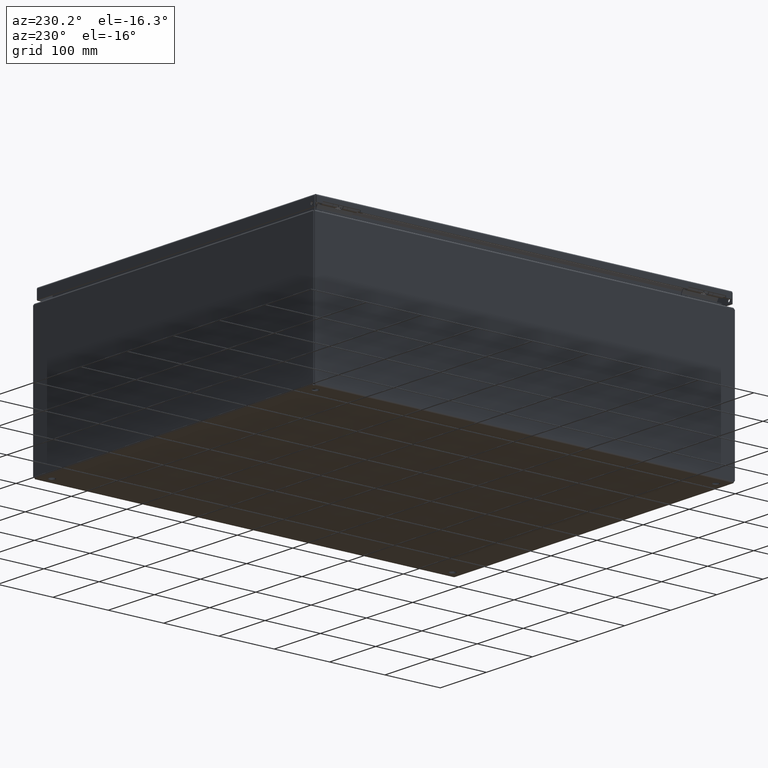
[diagram: clean part render]
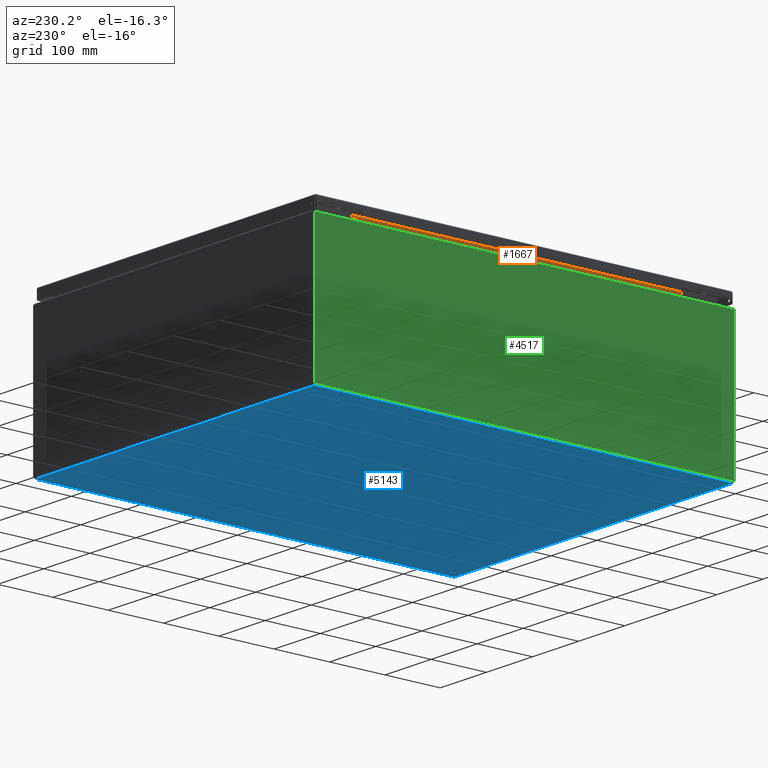
[diagram: same view with three faces highlighted in distinct colors, each labeled with its STEP entity id]
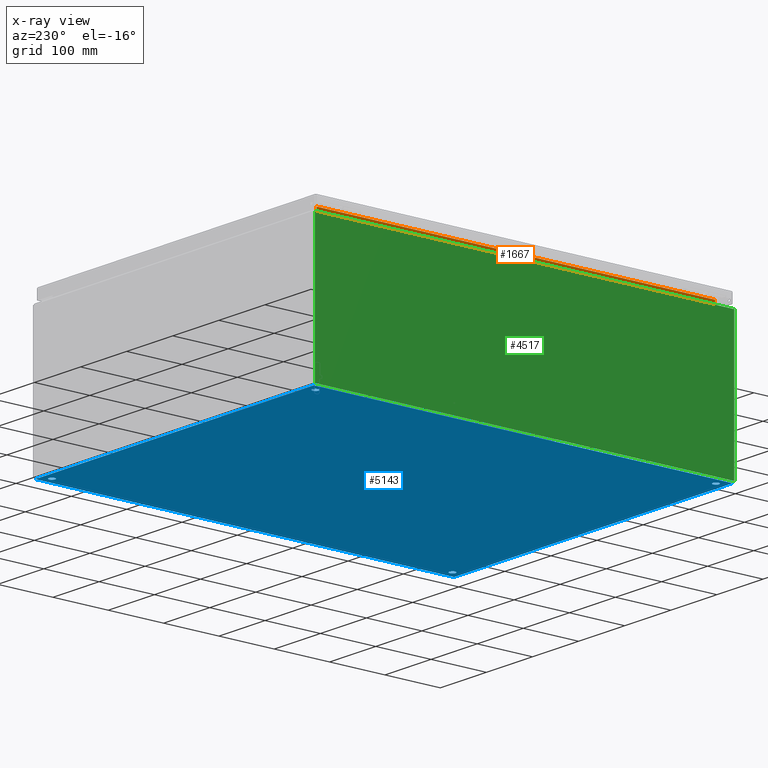
[diagram: x-ray of the same camera — body ghosted, the three highlighted faces saturated]
A machine part, auxiliary view with three faces highlighted in distinct colors.
The next image is the same camera in x-ray (body ghosted, the three faces saturated) — at least one of them is partly hidden behind the body in this view.
Their STEP definitions:

[orange] entity #1667 — the highlighted planar face has unit normal (-1, 0, 0).
#1020=CARTESIAN_POINT('',(0.738499999999976,29.176451456543468,10.455404022560259));
#1021=VERTEX_POINT('',#1020);
#1070=CARTESIAN_POINT('',(0.738499999999997,0.823548543456038,10.455404022560275));
#1071=VERTEX_POINT('',#1070);
#1149=CARTESIAN_POINT('',(0.738499999999995,0.823548543456038,10.455404022560275));
#1150=DIRECTION('',(0.0,1.0,0.0));
#1151=VECTOR('',#1150,28.352902913087430);
#1152=LINE('',#1149,#1151);
#1153=EDGE_CURVE('',#1071,#1021,#1152,.T.);
#1626=CARTESIAN_POINT('',(0.738499999999995,0.823548543456041,10.031250000000041));
#1627=VERTEX_POINT('',#1626);
#1628=CARTESIAN_POINT('',(0.738499999999997,0.823548543456042,10.031250000000041));
#1629=DIRECTION('',(0.0,0.0,1.0));
#1630=VECTOR('',#1629,0.424154022560234);
#1631=LINE('',#1628,#1630);
#1632=EDGE_CURVE('',#1627,#1071,#1631,.T.);
#1644=CARTESIAN_POINT('',(0.738499999999986,14.999999999999753,10.219960531768683));
#1645=DIRECTION('',(-1.0,0.0,0.0));
#1646=DIRECTION('',(0.0,0.0,1.0));
#1647=AXIS2_PLACEMENT_3D('',#1644,#1645,#1646);
#1648=PLANE('',#1647);
#1649=ORIENTED_EDGE('',*,*,#1153,.T.);
#1650=CARTESIAN_POINT('',(0.738499999999976,29.176451456543457,10.031250000000025));
#1651=VERTEX_POINT('',#1650);
#1652=CARTESIAN_POINT('',(0.738499999999976,29.176451456543468,10.031250000000025));
#1653=DIRECTION('',(0.0,0.0,1.0));
#1654=VECTOR('',#1653,0.424154022560232);
#1655=LINE('',#1652,#1654);
#1656=EDGE_CURVE('',#1651,#1021,#1655,.T.);
#1657=ORIENTED_EDGE('',*,*,#1656,.F.);
#1658=CARTESIAN_POINT('',(0.738499999999976,29.176451456543457,10.031250000000023));
#1659=DIRECTION('',(0.0,-1.0,0.0));
#1660=VECTOR('',#1659,28.352902913087419);
#1661=LINE('',#1658,#1660);
#1662=EDGE_CURVE('',#1651,#1627,#1661,.T.);
#1663=ORIENTED_EDGE('',*,*,#1662,.T.);
#1664=ORIENTED_EDGE('',*,*,#1632,.T.);
#1665=EDGE_LOOP('',(#1649,#1657,#1663,#1664));
#1666=FACE_OUTER_BOUND('',#1665,.T.);
#1667=ADVANCED_FACE('',(#1666),#1648,.T.);

[blue] entity #5143 — the highlighted planar face has unit normal (0, 0, 1).
#247=CARTESIAN_POINT('',(0.531249999999996,0.750000000000002,0.0));
#248=VERTEX_POINT('',#247);
#249=CARTESIAN_POINT('',(0.749999999999996,0.750000000000002,0.0));
#250=DIRECTION('',(0.0,0.0,1.0));
#251=DIRECTION('',(1.0,0.0,0.0));
#252=AXIS2_PLACEMENT_3D('',#249,#250,#251);
#253=CIRCLE('',#252,0.218750000000000);
#254=EDGE_CURVE('',#248,#248,#253,.T.);
#275=CARTESIAN_POINT('',(23.031249999999961,0.750000000000002,0.0));
#276=VERTEX_POINT('',#275);
#277=CARTESIAN_POINT('',(23.249999999999961,0.750000000000002,0.0));
#278=DIRECTION('',(0.0,0.0,1.0));
#279=DIRECTION('',(1.0,0.0,0.0));
#280=AXIS2_PLACEMENT_3D('',#277,#278,#279);
#281=CIRCLE('',#280,0.218750000000000);
#282=EDGE_CURVE('',#276,#276,#281,.T.);
#303=CARTESIAN_POINT('',(0.531249999999997,29.250000000000025,0.0));
#304=VERTEX_POINT('',#303);
#305=CARTESIAN_POINT('',(0.749999999999997,29.250000000000025,0.0));
#306=DIRECTION('',(0.0,0.0,1.0));
#307=DIRECTION('',(1.0,0.0,0.0));
#308=AXIS2_PLACEMENT_3D('',#305,#306,#307);
#309=CIRCLE('',#308,0.218750000000000);
#310=EDGE_CURVE('',#304,#304,#309,.T.);
#331=CARTESIAN_POINT('',(23.031249999999986,29.250000000000025,0.0));
#332=VERTEX_POINT('',#331);
#333=CARTESIAN_POINT('',(23.249999999999986,29.250000000000025,0.0));
#334=DIRECTION('',(0.0,0.0,1.0));
#335=DIRECTION('',(1.0,0.0,0.0));
#336=AXIS2_PLACEMENT_3D('',#333,#334,#335);
#337=CIRCLE('',#336,0.218750000000000);
#338=EDGE_CURVE('',#332,#332,#337,.T.);
#3921=CARTESIAN_POINT('',(23.894749999999995,29.886393473394303,0.0));
#3922=VERTEX_POINT('',#3921);
#4019=CARTESIAN_POINT('',(23.894750000000002,0.113606526605709,0.0));
#4020=VERTEX_POINT('',#4019);
#4063=CARTESIAN_POINT('',(23.894749999999995,29.886393473394300,0.0));
#4064=DIRECTION('',(0.0,-1.0,0.0));
#4065=VECTOR('',#4064,29.772786946788592);
#4066=LINE('',#4063,#4065);
#4067=EDGE_CURVE('',#3922,#4020,#4066,.T.);
#4238=CARTESIAN_POINT('',(0.113606526605702,29.894750000000002,5.594825E-015));
#4239=VERTEX_POINT('',#4238);
#4336=CARTESIAN_POINT('',(23.886393473394293,29.894750000000002,0.0));
#4337=VERTEX_POINT('',#4336);
#4380=CARTESIAN_POINT('',(0.113606526605702,29.894750000000002,0.0));
#4381=DIRECTION('',(1.0,0.0,0.0));
#4382=VECTOR('',#4381,23.772786946788592);
#4383=LINE('',#4380,#4382);
#4384=EDGE_CURVE('',#4239,#4337,#4383,.T.);
#4551=CARTESIAN_POINT('',(0.105250000000006,0.113606526605711,0.0));
#4552=VERTEX_POINT('',#4551);
#4649=CARTESIAN_POINT('',(0.105249999999997,29.886393473394296,0.0));
#4650=VERTEX_POINT('',#4649);
#4693=CARTESIAN_POINT('',(0.105250000000005,0.113606526605711,0.0));
#4694=DIRECTION('',(0.0,1.0,0.0));
#4695=VECTOR('',#4694,29.772786946788582);
#4696=LINE('',#4693,#4695);
#4697=EDGE_CURVE('',#4552,#4650,#4696,.T.);
#4864=CARTESIAN_POINT('',(23.886393473394293,0.105250000000001,0.0));
#4865=VERTEX_POINT('',#4864);
#4920=CARTESIAN_POINT('',(0.113606526605715,0.105250000000001,0.0));
#4921=VERTEX_POINT('',#4920);
#4935=CARTESIAN_POINT('',(23.886393473394293,0.105250000000001,0.0));
#4936=DIRECTION('',(-1.0,0.0,0.0));
#4937=VECTOR('',#4936,23.772786946788578);
#4938=LINE('',#4935,#4937);
#4939=EDGE_CURVE('',#4865,#4921,#4938,.T.);
#5030=CARTESIAN_POINT('',(0.061526884243670,0.061526884243670,0.0));
#5031=DIRECTION('',(0.0,0.0,1.0));
#5032=DIRECTION('',(1.0,0.0,0.0));
#5033=AXIS2_PLACEMENT_3D('',#5030,#5031,#5032);
#5034=CIRCLE('',#5033,0.068000000000000);
#5035=EDGE_CURVE('',#4921,#4552,#5034,.T.);
#5092=CARTESIAN_POINT('',(23.938473115756334,0.061526884243667,0.0));
#5093=DIRECTION('',(0.0,0.0,1.0));
#5094=DIRECTION('',(1.0,0.0,0.0));
#5095=AXIS2_PLACEMENT_3D('',#5092,#5093,#5094);
#5096=CIRCLE('',#5095,0.068000000000000);
#5097=EDGE_CURVE('',#4020,#4865,#5096,.T.);
#5104=CARTESIAN_POINT('',(11.999999999999996,15.000000000000007,0.0));
#5105=DIRECTION('',(0.0,0.0,1.0));
#5106=DIRECTION('',(1.0,0.0,0.0));
#5107=AXIS2_PLACEMENT_3D('',#5104,#5105,#5106);
#5108=PLANE('',#5107);
#5109=ORIENTED_EDGE('',*,*,#4939,.T.);
#5110=ORIENTED_EDGE('',*,*,#5035,.T.);
#5111=ORIENTED_EDGE('',*,*,#4697,.T.);
#5112=CARTESIAN_POINT('',(0.061526884243656,29.938473115756331,0.0));
#5113=DIRECTION('',(0.0,0.0,1.0));
#5114=DIRECTION('',(1.0,0.0,0.0));
#5115=AXIS2_PLACEMENT_3D('',#5112,#5113,#5114);
#5116=CIRCLE('',#5115,0.068000000000000);
#5117=EDGE_CURVE('',#4650,#4239,#5116,.T.);
#5118=ORIENTED_EDGE('',*,*,#5117,.T.);
#5119=ORIENTED_EDGE('',*,*,#4384,.T.);
#5120=CARTESIAN_POINT('',(23.938473115756331,29.938473115756342,0.0));
#5121=DIRECTION('',(0.0,0.0,1.0));
#5122=DIRECTION('',(1.0,0.0,0.0));
#5123=AXIS2_PLACEMENT_3D('',#5120,#5121,#5122);
#5124=CIRCLE('',#5123,0.068000000000000);
#5125=EDGE_CURVE('',#4337,#3922,#5124,.T.);
#5126=ORIENTED_EDGE('',*,*,#5125,.T.);
#5127=ORIENTED_EDGE('',*,*,#4067,.T.);
#5128=ORIENTED_EDGE('',*,*,#5097,.T.);
#5129=EDGE_LOOP('',(#5109,#5110,#5111,#5118,#5119,#5126,#5127,#5128));
#5130=FACE_OUTER_BOUND('',#5129,.T.);
#5131=ORIENTED_EDGE('',*,*,#254,.T.);
#5132=EDGE_LOOP('',(#5131));
#5133=FACE_BOUND('',#5132,.T.);
#5134=ORIENTED_EDGE('',*,*,#282,.T.);
#5135=EDGE_LOOP('',(#5134));
#5136=FACE_BOUND('',#5135,.T.);
#5137=ORIENTED_EDGE('',*,*,#310,.T.);
#5138=EDGE_LOOP('',(#5137));
#5139=FACE_BOUND('',#5138,.T.);
#5140=ORIENTED_EDGE('',*,*,#338,.T.);
#5141=EDGE_LOOP('',(#5140));
#5142=FACE_BOUND('',#5141,.T.);
#5143=ADVANCED_FACE('',(#5130,#5133,#5136,#5139,#5142),#5108,.F.);

[green] entity #4517 — the highlighted planar face has unit normal (1, 0, 0).
#3090=CARTESIAN_POINT('',(5.616679E-015,0.085048543456050,9.894749999999998));
#3091=VERTEX_POINT('',#3090);
#3120=CARTESIAN_POINT('',(-2.699066E-015,29.914951456543456,9.894750000000007));
#3121=VERTEX_POINT('',#3120);
#3135=CARTESIAN_POINT('',(5.511465E-015,0.085048543456050,9.894749999999998));
#3136=DIRECTION('',(0.0,1.0,0.0));
#3137=VECTOR('',#3136,29.829902913087405);
#3138=LINE('',#3135,#3137);
#3139=EDGE_CURVE('',#3091,#3121,#3138,.T.);
#3464=CARTESIAN_POINT('',(-3.649749E-015,29.919999999999995,9.894750000000007));
#3465=VERTEX_POINT('',#3464);
#3472=CARTESIAN_POINT('',(-3.621309E-015,29.914951456543456,9.894750000000007));
#3473=DIRECTION('',(0.0,1.0,0.0));
#3474=VECTOR('',#3473,0.005048543456539);
#3475=LINE('',#3472,#3474);
#3476=EDGE_CURVE('',#3121,#3465,#3475,.T.);
#3642=CARTESIAN_POINT('',(5.485551E-015,0.080000000000007,9.894749999999998));
#3643=VERTEX_POINT('',#3642);
#3644=CARTESIAN_POINT('',(5.513011E-015,0.080000000000006,9.894749999999998));
#3645=DIRECTION('',(0.0,1.0,0.0));
#3646=VECTOR('',#3645,0.005048543456044);
#3647=LINE('',#3644,#3646);
#3648=EDGE_CURVE('',#3643,#3091,#3647,.T.);
#3673=CARTESIAN_POINT('',(5.635656E-015,0.080000000000004,0.126969561406607));
#3674=VERTEX_POINT('',#3673);
#3675=CARTESIAN_POINT('',(6.095738E-015,0.080000000000001,9.894750000000000));
#3676=DIRECTION('',(0.0,0.0,-1.0));
#3677=VECTOR('',#3676,9.767780438593393);
#3678=LINE('',#3675,#3677);
#3679=EDGE_CURVE('',#3643,#3674,#3678,.T.);
#4405=CARTESIAN_POINT('',(-3.018703E-015,29.886393473394296,0.105250000000000));
#4406=VERTEX_POINT('',#4405);
#4413=CARTESIAN_POINT('',(-3.500209E-015,29.919999999999995,0.126969561406610));
#4414=VERTEX_POINT('',#4413);
#4415=CARTESIAN_POINT('',(-3.031980E-015,29.938473115756342,0.061526884243671));
#4416=DIRECTION('',(1.0,0.0,0.0));
#4417=DIRECTION('',(0.0,0.0,-1.0));
#4418=AXIS2_PLACEMENT_3D('',#4415,#4416,#4417);
#4419=CIRCLE('',#4418,0.068000000000000);
#4420=EDGE_CURVE('',#4414,#4406,#4419,.T.);
#4484=CARTESIAN_POINT('',(1.238679E-015,15.000000000000004,5.008901884243667));
#4485=DIRECTION('',(1.0,0.0,0.0));
#4486=DIRECTION('',(0.0,0.0,-1.0));
#4487=AXIS2_PLACEMENT_3D('',#4484,#4485,#4486);
#4488=PLANE('',#4487);
#4489=ORIENTED_EDGE('',*,*,#3648,.T.);
#4490=ORIENTED_EDGE('',*,*,#3139,.T.);
#4491=ORIENTED_EDGE('',*,*,#3476,.T.);
#4492=CARTESIAN_POINT('',(-3.041258E-015,29.919999999999995,0.126969561406610));
#4493=DIRECTION('',(0.0,0.0,1.0));
#4494=VECTOR('',#4493,9.767780438593398);
#4495=LINE('',#4492,#4494);
#4496=EDGE_CURVE('',#4414,#3465,#4495,.T.);
#4497=ORIENTED_EDGE('',*,*,#4496,.F.);
#4498=ORIENTED_EDGE('',*,*,#4420,.T.);
#4499=CARTESIAN_POINT('',(6.096584E-015,0.113606526605711,0.105250000000000));
#4500=VERTEX_POINT('',#4499);
#4501=CARTESIAN_POINT('',(-3.018712E-015,29.886393473394296,0.105250000000000));
#4502=DIRECTION('',(0.0,-1.0,0.0));
#4503=VECTOR('',#4502,29.772786946788585);
#4504=LINE('',#4501,#4503);
#4505=EDGE_CURVE('',#4406,#4500,#4504,.T.);
#4506=ORIENTED_EDGE('',*,*,#4505,.T.);
#4507=CARTESIAN_POINT('',(6.115197E-015,0.061526884243670,0.061526884243664));
#4508=DIRECTION('',(1.0,0.0,0.0));
#4509=DIRECTION('',(0.0,0.0,-1.0));
#4510=AXIS2_PLACEMENT_3D('',#4507,#4508,#4509);
#4511=CIRCLE('',#4510,0.068000000000000);
#4512=EDGE_CURVE('',#4500,#3674,#4511,.T.);
#4513=ORIENTED_EDGE('',*,*,#4512,.T.);
#4514=ORIENTED_EDGE('',*,*,#3679,.F.);
#4515=EDGE_LOOP('',(#4489,#4490,#4491,#4497,#4498,#4506,#4513,#4514));
#4516=FACE_OUTER_BOUND('',#4515,.T.);
#4517=ADVANCED_FACE('',(#4516),#4488,.F.);